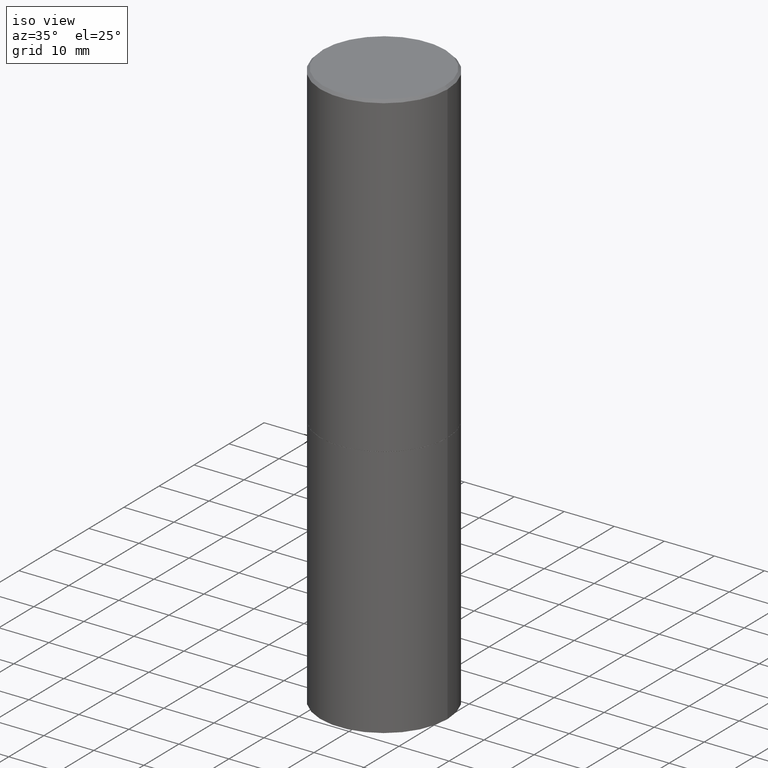
[diagram: clean part render]
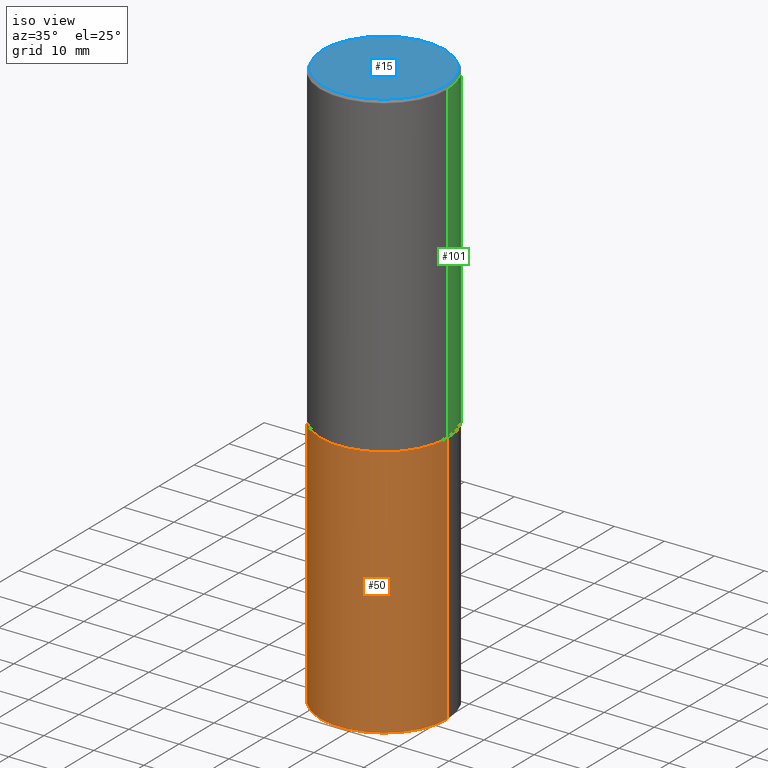
[diagram: same view with three faces highlighted in distinct colors, each labeled with its STEP entity id]
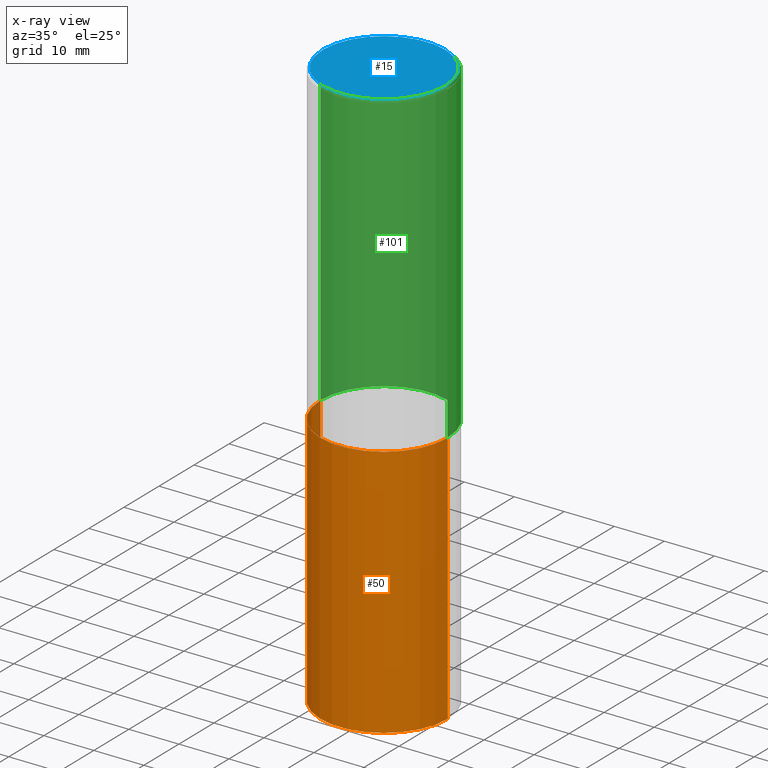
[diagram: x-ray of the same camera — body ghosted, the three highlighted faces saturated]
A machine part, iso view with three faces highlighted in distinct colors.
The next image is the same camera in x-ray (body ghosted, the three faces saturated) — at least one of them is partly hidden behind the body in this view.
Their STEP definitions:

[orange] entity #50 — the highlighted cylindrical surface (partial cylindrical patch) has radius 12.7 mm, axis along (-0, 0, 1).
#29 = AXIS2_PLACEMENT_3D ( 'NONE', #72, #352, #68 ) ;
#33 = EDGE_CURVE ( 'NONE', #100, #92, #261, .T. ) ;
#37 = CYLINDRICAL_SURFACE ( 'NONE', #29, 0.5000000000000000000 ) ;
#41 = DIRECTION ( 'NONE',  ( -2.445468806185136597E-29, 3.491481338843145583E-15, 1.000000000000000000 ) ) ;
#50 = ADVANCED_FACE ( 'NONE', ( #144 ), #37, .T. ) ;
#51 = ORIENTED_EDGE ( 'NONE', *, *, #55, .F. ) ;
#55 = EDGE_CURVE ( 'NONE', #92, #279, #219, .T. ) ;
#68 = DIRECTION ( 'NONE',  ( 1.000000000000000000, -6.982962677686266711E-15, 4.876176775795935793E-29 ) ) ;
#72 = CARTESIAN_POINT ( 'NONE',  ( 0.000000000000000000, 0.000000000000000000, 0.000000000000000000 ) ) ;
#79 = AXIS2_PLACEMENT_3D ( 'NONE', #259, #41, #267 ) ;
#92 = VERTEX_POINT ( 'NONE', #209 ) ;
#100 = VERTEX_POINT ( 'NONE', #258 ) ;
#108 = EDGE_LOOP ( 'NONE', ( #237, #207, #319, #51 ) ) ;
#112 = CARTESIAN_POINT ( 'NONE',  ( 0.5000000000000000000, -3.491481338843133355E-15, 2.438088387897967896E-29 ) ) ;
#113 = DIRECTION ( 'NONE',  ( -2.445468806185136877E-29, 3.491481338843145188E-15, 1.000000000000000000 ) ) ;
#143 = CIRCLE ( 'NONE', #213, 0.5000000000000000000 ) ;
#144 = FACE_OUTER_BOUND ( 'NONE', #108, .T. ) ;
#161 = CARTESIAN_POINT ( 'NONE',  ( 1.100460962783311469E-28, -1.571166602479415690E-14, -4.500000000000000000 ) ) ;
#177 = CARTESIAN_POINT ( 'NONE',  ( -0.5000000000000000000, 3.552713678800500929E-15, -2.459467545127452891E-29 ) ) ;
#182 = DIRECTION ( 'NONE',  ( -2.445468806185136877E-29, 3.491481338843145188E-15, 1.000000000000000000 ) ) ;
#204 = EDGE_CURVE ( 'NONE', #100, #323, #143, .T. ) ;
#207 = ORIENTED_EDGE ( 'NONE', *, *, #204, .T. ) ;
#209 = CARTESIAN_POINT ( 'NONE',  ( -0.5000000000000000000, -8.667471007150509990E-15, -2.500000000000000000 ) ) ;
#213 = AXIS2_PLACEMENT_3D ( 'NONE', #161, #274, #243 ) ;
#219 = CIRCLE ( 'NONE', #79, 0.5000000000000000000 ) ;
#231 = EDGE_CURVE ( 'NONE', #323, #279, #278, .T. ) ;
#232 = CARTESIAN_POINT ( 'NONE',  ( 0.5000000000000000000, -1.222018468595099830E-14, -2.500000000000000000 ) ) ;
#237 = ORIENTED_EDGE ( 'NONE', *, *, #33, .F. ) ;
#243 = DIRECTION ( 'NONE',  ( 1.000000000000000000, -6.982962677686266711E-15, 0.000000000000000000 ) ) ;
#258 = CARTESIAN_POINT ( 'NONE',  ( -0.5000000000000000000, -8.667471007150509990E-15, -4.500000000000000000 ) ) ;
#259 = CARTESIAN_POINT ( 'NONE',  ( 6.113672015462842613E-29, -8.728703347107864943E-15, -2.500000000000000000 ) ) ;
#261 = LINE ( 'NONE', #177, #341 ) ;
#267 = DIRECTION ( 'NONE',  ( 1.000000000000000000, -6.982962677686269077E-15, 0.000000000000000000 ) ) ;
#274 = DIRECTION ( 'NONE',  ( -2.445468806185136597E-29, 3.491481338843145583E-15, 1.000000000000000000 ) ) ;
#278 = LINE ( 'NONE', #112, #351 ) ;
#279 = VERTEX_POINT ( 'NONE', #232 ) ;
#292 = CARTESIAN_POINT ( 'NONE',  ( 0.5000000000000000000, -1.920314736363729025E-14, -4.500000000000000000 ) ) ;
#319 = ORIENTED_EDGE ( 'NONE', *, *, #231, .T. ) ;
#323 = VERTEX_POINT ( 'NONE', #292 ) ;
#341 = VECTOR ( 'NONE', #182, 39.37007874015748143 ) ;
#351 = VECTOR ( 'NONE', #113, 39.37007874015748143 ) ;
#352 = DIRECTION ( 'NONE',  ( -2.445468806185136597E-29, 3.491481338843145583E-15, 1.000000000000000000 ) ) ;

[blue] entity #15 — the highlighted planar face has unit normal (0, -0, -1).
#3 = VERTEX_POINT ( 'NONE', #87 ) ;
#13 = AXIS2_PLACEMENT_3D ( 'NONE', #180, #348, #64 ) ;
#15 = ADVANCED_FACE ( 'NONE', ( #125 ), #172, .F. ) ;
#20 = DIRECTION ( 'NONE',  ( -2.445468806185136597E-29, 3.491481338843145583E-15, 1.000000000000000000 ) ) ;
#64 = DIRECTION ( 'NONE',  ( -1.000000000000000000, 6.982962677686265922E-15, -4.876176775795935793E-29 ) ) ;
#66 = EDGE_LOOP ( 'NONE', ( #115, #171 ) ) ;
#87 = CARTESIAN_POINT ( 'NONE',  ( -0.4799999999999996492, 3.386736898677836830E-15, 1.280553747027767124E-17 ) ) ;
#88 = VERTEX_POINT ( 'NONE', #353 ) ;
#115 = ORIENTED_EDGE ( 'NONE', *, *, #119, .T. ) ;
#119 = EDGE_CURVE ( 'NONE', #3, #88, #307, .T. ) ;
#125 = FACE_OUTER_BOUND ( 'NONE', #66, .T. ) ;
#126 = DIRECTION ( 'NONE',  ( 1.000000000000000000, -6.982962677686267499E-15, 4.876036955247132767E-29 ) ) ;
#136 = CIRCLE ( 'NONE', #195, 0.4799999999999996492 ) ;
#158 = AXIS2_PLACEMENT_3D ( 'NONE', #305, #329, #301 ) ;
#171 = ORIENTED_EDGE ( 'NONE', *, *, #183, .T. ) ;
#172 = PLANE ( 'NONE',  #13 ) ;
#180 = CARTESIAN_POINT ( 'NONE',  ( 3.351822085289405181E-15, 0.4799999999999996492, -1.669508273909558064E-15 ) ) ;
#183 = EDGE_CURVE ( 'NONE', #88, #3, #136, .T. ) ;
#195 = AXIS2_PLACEMENT_3D ( 'NONE', #304, #20, #126 ) ;
#301 = DIRECTION ( 'NONE',  ( 1.000000000000000000, -6.982962677686267499E-15, 4.876036955247132767E-29 ) ) ;
#304 = CARTESIAN_POINT ( 'NONE',  ( -3.131554243005659264E-46, 4.471029511141341874E-32, 1.280553747030123384E-17 ) ) ;
#305 = CARTESIAN_POINT ( 'NONE',  ( -3.131554243005659264E-46, 4.471029511141341874E-32, 1.280553747030123384E-17 ) ) ;
#307 = CIRCLE ( 'NONE', #158, 0.4799999999999996492 ) ;
#329 = DIRECTION ( 'NONE',  ( -2.445468806185136597E-29, 3.491481338843145583E-15, 1.000000000000000000 ) ) ;
#348 = DIRECTION ( 'NONE',  ( 2.438088387897960049E-29, -3.491481338843145188E-15, -1.000000000000000000 ) ) ;
#353 = CARTESIAN_POINT ( 'NONE',  ( 0.4799999999999996492, -3.396558832296480127E-15, 1.280553747032483033E-17 ) ) ;

[green] entity #101 — the highlighted cylindrical surface (partial cylindrical patch) has radius 12.7 mm, axis along (-0, 0, 1).
#4 = EDGE_CURVE ( 'NONE', #202, #262, #39, .T. ) ;
#5 = ORIENTED_EDGE ( 'NONE', *, *, #4, .T. ) ;
#8 = CARTESIAN_POINT ( 'NONE',  ( -0.5000000000000000000, -8.448070674724411945E-16, -2.499000000000000110 ) ) ;
#9 = CARTESIAN_POINT ( 'NONE',  ( 0.000000000000000000, 0.000000000000000000, 0.000000000000000000 ) ) ;
#10 = CARTESIAN_POINT ( 'NONE',  ( 6.111226546656657010E-29, -8.725211865769021935E-15, -2.499000000000000110 ) ) ;
#17 = LINE ( 'NONE', #146, #173 ) ;
#22 = AXIS2_PLACEMENT_3D ( 'NONE', #10, #61, #354 ) ;
#39 = CIRCLE ( 'NONE', #22, 0.5000000000000000000 ) ;
#47 = CARTESIAN_POINT ( 'NONE',  ( 0.5000000000000000000, -1.221669320461215371E-14, -2.499000000000000110 ) ) ;
#61 = DIRECTION ( 'NONE',  ( -2.445468806185136597E-29, 3.491481338843145583E-15, 1.000000000000000000 ) ) ;
#63 = DIRECTION ( 'NONE',  ( -2.445468806185136597E-29, 3.491481338843145583E-15, 1.000000000000000000 ) ) ;
#65 = DIRECTION ( 'NONE',  ( -2.445468806185136877E-29, 3.491481338843145188E-15, 1.000000000000000000 ) ) ;
#67 = EDGE_CURVE ( 'NONE', #202, #169, #17, .T. ) ;
#85 = AXIS2_PLACEMENT_3D ( 'NONE', #270, #281, #251 ) ;
#90 = CYLINDRICAL_SURFACE ( 'NONE', #303, 0.4999999999999998335 ) ;
#97 = CARTESIAN_POINT ( 'NONE',  ( 0.4999999999999997224, -3.500078625662627502E-15, -0.02000000000000011144 ) ) ;
#101 = ADVANCED_FACE ( 'NONE', ( #238 ), #90, .T. ) ;
#109 = CIRCLE ( 'NONE', #85, 0.4999999999999997224 ) ;
#146 = CARTESIAN_POINT ( 'NONE',  ( 0.4999999999999998335, -3.491481338843132566E-15, 2.438088387897967336E-29 ) ) ;
#155 = DIRECTION ( 'NONE',  ( -2.445468806185136877E-29, 3.491481338843145188E-15, 1.000000000000000000 ) ) ;
#169 = VERTEX_POINT ( 'NONE', #97 ) ;
#173 = VECTOR ( 'NONE', #155, 39.37007874015748143 ) ;
#198 = ORIENTED_EDGE ( 'NONE', *, *, #299, .T. ) ;
#202 = VERTEX_POINT ( 'NONE', #47 ) ;
#221 = CARTESIAN_POINT ( 'NONE',  ( -0.4999999999999998335, 3.552713678800499746E-15, -2.459467545127452330E-29 ) ) ;
#226 = ORIENTED_EDGE ( 'NONE', *, *, #67, .F. ) ;
#238 = FACE_OUTER_BOUND ( 'NONE', #337, .T. ) ;
#248 = LINE ( 'NONE', #221, #277 ) ;
#251 = DIRECTION ( 'NONE',  ( 1.000000000000000000, -6.982962677686266711E-15, 0.000000000000000000 ) ) ;
#254 = VERTEX_POINT ( 'NONE', #343 ) ;
#262 = VERTEX_POINT ( 'NONE', #8 ) ;
#266 = DIRECTION ( 'NONE',  ( 1.000000000000000000, -6.982962677686267499E-15, 4.876176775795936353E-29 ) ) ;
#270 = CARTESIAN_POINT ( 'NONE',  ( 4.890937612370301184E-31, -6.982962677686329819E-17, -0.02000000000000011144 ) ) ;
#277 = VECTOR ( 'NONE', #65, 39.37007874015748143 ) ;
#281 = DIRECTION ( 'NONE',  ( -2.445468806185136597E-29, 3.491481338843145583E-15, 1.000000000000000000 ) ) ;
#283 = EDGE_CURVE ( 'NONE', #169, #254, #109, .T. ) ;
#299 = EDGE_CURVE ( 'NONE', #262, #254, #248, .T. ) ;
#303 = AXIS2_PLACEMENT_3D ( 'NONE', #9, #63, #266 ) ;
#337 = EDGE_LOOP ( 'NONE', ( #5, #198, #340, #226 ) ) ;
#340 = ORIENTED_EDGE ( 'NONE', *, *, #283, .F. ) ;
#343 = CARTESIAN_POINT ( 'NONE',  ( -0.4999999999999997224, 3.421651712066268085E-15, -0.02000000000000011144 ) ) ;
#354 = DIRECTION ( 'NONE',  ( 1.000000000000000000, -6.982962677686265133E-15, 0.000000000000000000 ) ) ;